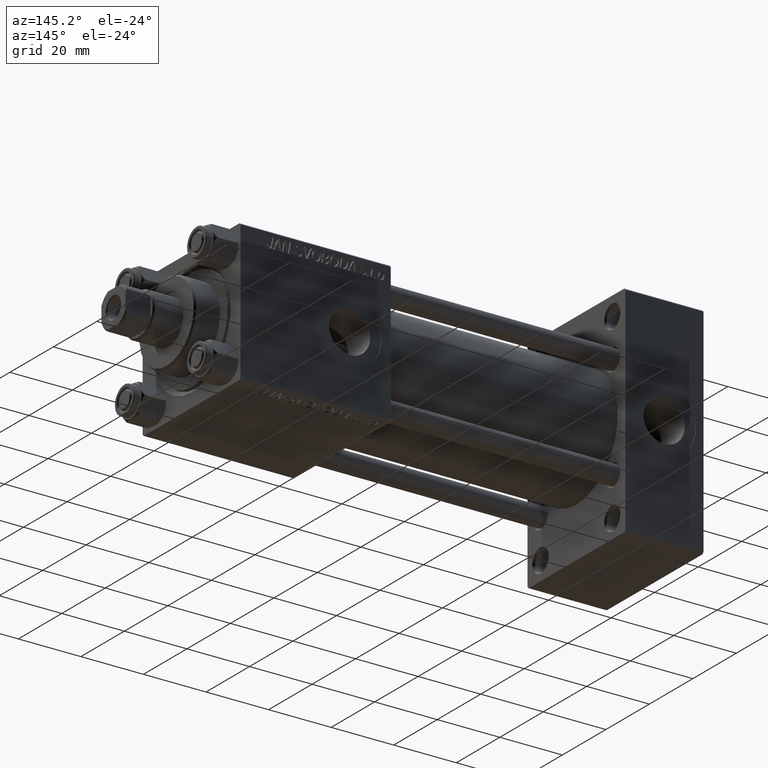
[diagram: clean part render]
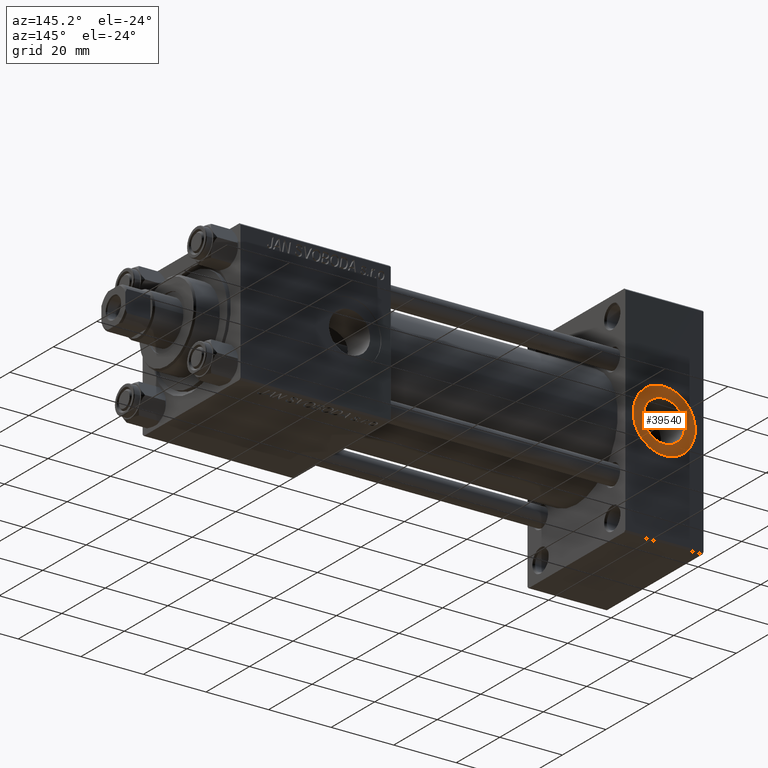
[diagram: same view with one face highlighted and labeled with its STEP entity id]
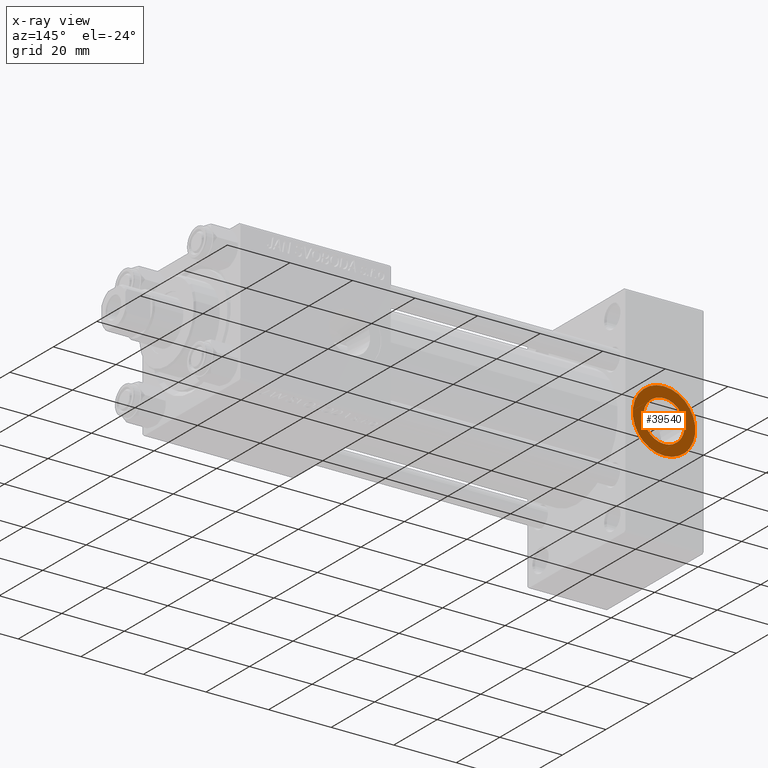
[diagram: x-ray of the same camera — body ghosted, the highlighted face saturated]
A machine part, auxiliary view. The second image highlights one B-rep face of the part: STEP entity #39540.
The next image is the same camera in x-ray: the body ghosted, the highlighted face saturated — about 0% of this face is hidden behind the body in this view.
In plain terms, the highlighted planar face has unit normal (0, 1, 0).
Its self-contained STEP definition (entity closure, byte-faithful):
#10 = CARTESIAN_POINT ( 'NONE',  ( 12.50000000000000000, 22.30000000000000426, -6.579999999999998295 ) ) ;
#226 = EDGE_LOOP ( 'NONE', ( #24008, #14840 ) ) ;
#2261 = AXIS2_PLACEMENT_3D ( 'NONE', #39865, #40108, #5479 ) ;
#4311 = DIRECTION ( 'NONE',  ( 0.000000000000000000, 0.000000000000000000, 1.000000000000000000 ) ) ;
#4755 = AXIS2_PLACEMENT_3D ( 'NONE', #27349, #42260, #38735 ) ;
#5479 = DIRECTION ( 'NONE',  ( 0.000000000000000000, -0.000000000000000000, 1.000000000000000000 ) ) ;
#5561 = ORIENTED_EDGE ( 'NONE', *, *, #23407, .T. ) ;
#5798 = CARTESIAN_POINT ( 'NONE',  ( 12.50000000000000000, 22.30000000000000426, 6.579999999999998295 ) ) ;
#6704 = CARTESIAN_POINT ( 'NONE',  ( 12.50000000000000000, 22.30000000000000426, 9.999999999999996447 ) ) ;
#11997 = AXIS2_PLACEMENT_3D ( 'NONE', #36203, #20785, #21281 ) ;
#14840 = ORIENTED_EDGE ( 'NONE', *, *, #40557, .F. ) ;
#16219 = EDGE_LOOP ( 'NONE', ( #5561, #18878 ) ) ;
#16573 = VERTEX_POINT ( 'NONE', #6704 ) ;
#17288 = CIRCLE ( 'NONE', #48730, 9.999999999999996447 ) ;
#17349 = FACE_OUTER_BOUND ( 'NONE', #16219, .T. ) ;
#17593 = FACE_BOUND ( 'NONE', #226, .T. ) ;
#17870 = DIRECTION ( 'NONE',  ( 0.000000000000000000, 0.000000000000000000, 1.000000000000000000 ) ) ;
#18487 = CIRCLE ( 'NONE', #4755, 6.579999999999998295 ) ;
#18878 = ORIENTED_EDGE ( 'NONE', *, *, #29566, .T. ) ;
#19921 = AXIS2_PLACEMENT_3D ( 'NONE', #22163, #44911, #17870 ) ;
#19980 = CARTESIAN_POINT ( 'NONE',  ( 12.50000000000000000, 22.30000000000000426, 0.000000000000000000 ) ) ;
#20785 = DIRECTION ( 'NONE',  ( 0.000000000000000000, 1.000000000000000000, 0.000000000000000000 ) ) ;
#21281 = DIRECTION ( 'NONE',  ( 0.000000000000000000, 0.000000000000000000, 1.000000000000000000 ) ) ;
#22163 = CARTESIAN_POINT ( 'NONE',  ( 12.50000000000000000, 22.30000000000000426, 0.000000000000000000 ) ) ;
#23407 = EDGE_CURVE ( 'NONE', #16573, #43346, #17288, .T. ) ;
#24008 = ORIENTED_EDGE ( 'NONE', *, *, #41730, .F. ) ;
#26858 = VERTEX_POINT ( 'NONE', #5798 ) ;
#27349 = CARTESIAN_POINT ( 'NONE',  ( 12.50000000000000000, 22.30000000000000426, 0.000000000000000000 ) ) ;
#28728 = PLANE ( 'NONE',  #2261 ) ;
#28923 = CIRCLE ( 'NONE', #11997, 6.579999999999998295 ) ;
#29566 = EDGE_CURVE ( 'NONE', #43346, #16573, #48156, .T. ) ;
#35070 = CARTESIAN_POINT ( 'NONE',  ( 12.50000000000000178, 22.30000000000000426, -9.999999999999996447 ) ) ;
#35394 = DIRECTION ( 'NONE',  ( 0.000000000000000000, 1.000000000000000000, 0.000000000000000000 ) ) ;
#36203 = CARTESIAN_POINT ( 'NONE',  ( 12.50000000000000000, 22.30000000000000426, 0.000000000000000000 ) ) ;
#38735 = DIRECTION ( 'NONE',  ( 0.000000000000000000, 0.000000000000000000, 1.000000000000000000 ) ) ;
#39540 = ADVANCED_FACE ( 'NONE', ( #17593, #17349 ), #28728, .T. ) ;
#39865 = CARTESIAN_POINT ( 'NONE',  ( 12.50000000000000000, 22.30000000000000426, 0.000000000000000000 ) ) ;
#40108 = DIRECTION ( 'NONE',  ( 0.000000000000000000, 1.000000000000000000, 0.000000000000000000 ) ) ;
#40557 = EDGE_CURVE ( 'NONE', #49051, #26858, #28923, .T. ) ;
#41730 = EDGE_CURVE ( 'NONE', #26858, #49051, #18487, .T. ) ;
#42260 = DIRECTION ( 'NONE',  ( 0.000000000000000000, 1.000000000000000000, 0.000000000000000000 ) ) ;
#43346 = VERTEX_POINT ( 'NONE', #35070 ) ;
#44911 = DIRECTION ( 'NONE',  ( 0.000000000000000000, 1.000000000000000000, 0.000000000000000000 ) ) ;
#48156 = CIRCLE ( 'NONE', #19921, 9.999999999999996447 ) ;
#48730 = AXIS2_PLACEMENT_3D ( 'NONE', #19980, #35394, #4311 ) ;
#49051 = VERTEX_POINT ( 'NONE', #10 ) ;